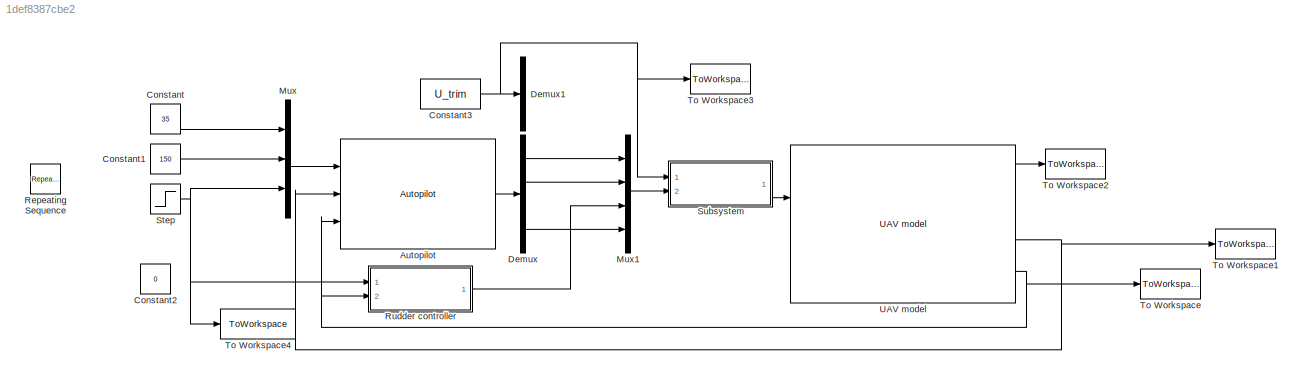
MODEL slx_1def8387cbe2
KIND model
CONFIG AbsTol = auto
CONFIG FixedStep = auto
CONFIG MaxStep = auto
CONFIG MinStep = auto
CONFIG RelTol = 1e-3
CONFIG SampleTimeConstraint = Unconstrained
CONFIG Solver = FixedStepAuto
CONFIG SolverMode = Auto
CONFIG SolverName = FixedStepAuto
CONFIG StartTime = 0.0
CONFIG StopTime = 150
BLOCK [Reference] Autopilot  REF=X8_lib/Autopilot
  Ports = [3, 1]
  SourceBlock = X8_lib/Autopilot
BLOCK [Constant] Constant
  Value = 35
BLOCK [Constant] Constant1
  Value = 150
BLOCK [Constant] Constant2
  Value = 0
BLOCK [Constant] Constant3
  Value = U_trim
BLOCK [Demux] Demux
  DisplayOption = bar
  Ports = [1, 4]
BLOCK [Demux] Demux1
  DisplayOption = bar
  Ports = [1, 4]
BLOCK [Mux] Mux
  DisplayOption = bar
  Inputs = 3
  Ports = [3, 1]
BLOCK [Mux] Mux1
  DisplayOption = bar
  Ports = [4, 1]
BLOCK [Reference] Repeating Sequence  REF=simulink/Sources/Repeating
Sequence
  Ports = [0, 1]
  SourceBlock = simulink/Sources/Repeating\nSequence
  SourceType = Repeating table
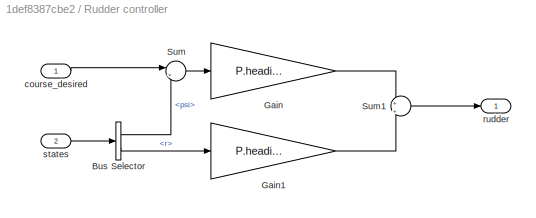
BLOCK [SubSystem] Rudder controller
  Ports = [2, 1]
  RequestExecContextInheritance = off
  Variant = off
BLOCK [BusSelector] Rudder controller/Bus Selector
  OutputSignals = Attitude.psi,AngularVelocity.r
  Ports = [1, 2]
BLOCK [Gain] Rudder controller/Gain
  Gain = P.heading_rudder_kp
  OutDataTypeStr = Inherit: Inherit via internal rule
  ParamDataTypeStr = Inherit: Inherit via internal rule
  SaturateOnIntegerOverflow = off
BLOCK [Gain] Rudder controller/Gain1
  Gain = P.heading_rudder_kd
  OutDataTypeStr = Inherit: Inherit via internal rule
  ParamDataTypeStr = Inherit: Inherit via internal rule
  SaturateOnIntegerOverflow = off
BLOCK [Sum] Rudder controller/Sum
  IconShape = round
  InputSameDT = off
  Inputs = |+-
  OutDataTypeStr = Inherit: Inherit via internal rule
  Ports = [2, 1]
  SaturateOnIntegerOverflow = off
BLOCK [Sum] Rudder controller/Sum1
  IconShape = round
  InputSameDT = off
  Inputs = +|+
  OutDataTypeStr = Inherit: Inherit via internal rule
  Ports = [2, 1]
  SaturateOnIntegerOverflow = off
BLOCK [Inport] Rudder controller/course_desired
  IconDisplay = Port number
BLOCK [Outport] Rudder controller/rudder
  IconDisplay = Port number
BLOCK [Inport] Rudder controller/states
  IconDisplay = Port number
  Port = 2
BLOCK [Step] Step
  After = pi/4
  SampleTime = 0
  Time = 50
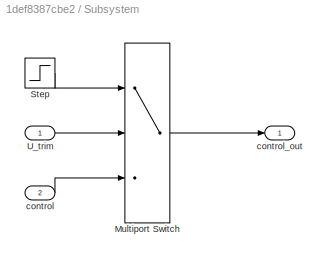
BLOCK [SubSystem] Subsystem
  Ports = [2, 1]
  RequestExecContextInheritance = off
  Variant = off
BLOCK [MultiPortSwitch] Subsystem/Multiport Switch
  InputSameDT = off
  Inputs = 2
  Ports = [3, 1]
  SaturateOnIntegerOverflow = off
BLOCK [Step] Subsystem/Step
  After = 2
  Before = 1
  SampleTime = 0
  Time = 2
BLOCK [Inport] Subsystem/U_trim
  IconDisplay = Port number
BLOCK [Inport] Subsystem/control
  IconDisplay = Port number
  Port = 2
BLOCK [Outport] Subsystem/control_out
  IconDisplay = Port number
BLOCK [ToWorkspace] To Workspace
  FixptAsFi = on
  MaxDataPoints = inf
  Ports = [1]
  SampleTime = -1
  Save2DSignal = 3-D array (concatenate along third dimension)
  SaveFormat = Timeseries
  VariableName = states
BLOCK [ToWorkspace] To Workspace1
  FixptAsFi = on
  MaxDataPoints = inf
  Ports = [1]
  SampleTime = -1
  Save2DSignal = 3-D array (concatenate along third dimension)
  SaveFormat = Timeseries
  VariableName = airdata
BLOCK [ToWorkspace] To Workspace2
  FixptAsFi = on
  MaxDataPoints = inf
  Ports = [1]
  SampleTime = -1
  Save2DSignal = 3-D array (concatenate along third dimension)
  SaveFormat = Timeseries
  VariableName = control
BLOCK [ToWorkspace] To Workspace3
  FixptAsFi = on
  MaxDataPoints = inf
  Ports = [1]
  SampleTime = -1
  Save2DSignal = 3-D array (concatenate along third dimension)
  SaveFormat = Timeseries
  VariableName = auto
BLOCK [ToWorkspace] To Workspace4
  FixptAsFi = on
  MaxDataPoints = inf
  Ports = [1]
  SampleTime = -1
  Save2DSignal = 3-D array (concatenate along third dimension)
  SaveFormat = Timeseries
  VariableName = course_desired
BLOCK [Reference] UAV model  REF=X8_lib/UAV model
  Ports = [2, 4]
  SourceBlock = X8_lib/UAV model
LINE Autopilot:1 -> Demux:1
LINE Constant1:1 -> Mux:2
NET Constant3:1 -> Demux1:1, Subsystem:1, To Workspace3:1
LINE Constant:1 -> Mux:1
LINE Demux:1 -> Mux1:1
LINE Demux:2 -> Mux1:2
LINE Demux:4 -> Mux1:4
LINE Mux1:1 -> Subsystem:2
LINE Mux:1 -> Autopilot:1
LINE Rudder controller/Bus Selector:1 -> Rudder controller/Sum:2
LINE Rudder controller/Bus Selector:2 -> Rudder controller/Gain1:1
LINE Rudder controller/Gain1:1 -> Rudder controller/Sum1:2
LINE Rudder controller/Gain:1 -> Rudder controller/Sum1:1
LINE Rudder controller/Sum1:1 -> Rudder controller/rudder:1
LINE Rudder controller/Sum:1 -> Rudder controller/Gain:1
LINE Rudder controller/course_desired:1 -> Rudder controller/Sum:1
LINE Rudder controller/states:1 -> Rudder controller/Bus Selector:1
LINE Rudder controller:1 -> Mux1:3
NET Step:1 -> Mux:3, Rudder controller:1, To Workspace4:1
LINE Subsystem/Multiport Switch:1 -> Subsystem/control_out:1
LINE Subsystem/Step:1 -> Subsystem/Multiport Switch:1
LINE Subsystem/U_trim:1 -> Subsystem/Multiport Switch:2
LINE Subsystem/control:1 -> Subsystem/Multiport Switch:3
LINE Subsystem:1 -> UAV model:1
LINE UAV model:1 -> To Workspace2:1
NET UAV model:3 -> Autopilot:2, To Workspace1:1
NET UAV model:4 -> Autopilot:3, Rudder controller:2, To Workspace:1
note: NET lines group one-source signal fan-out (src -> all destinations, sorted); 1:1 wires keep LINE
